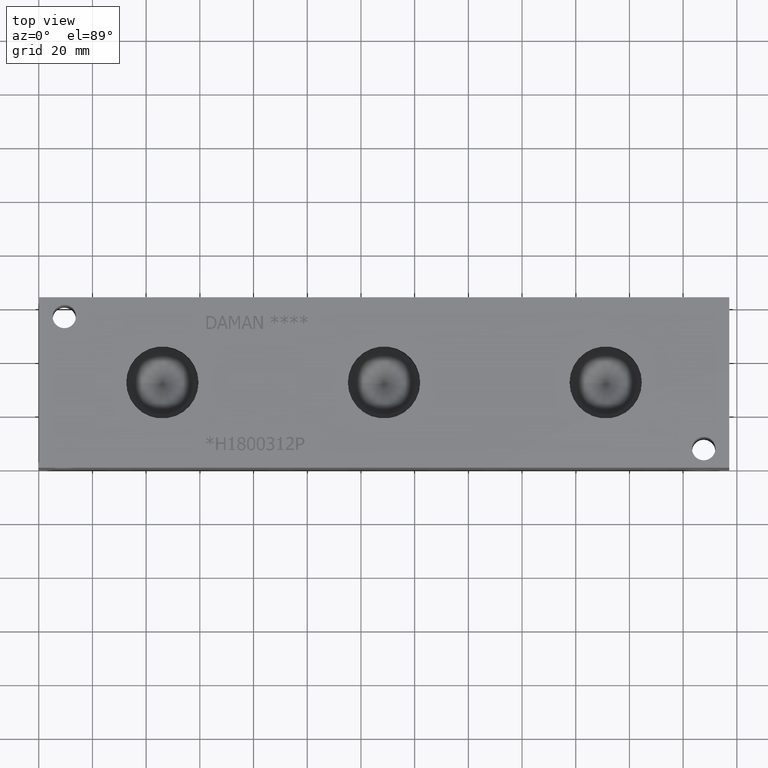
[diagram: clean part render]
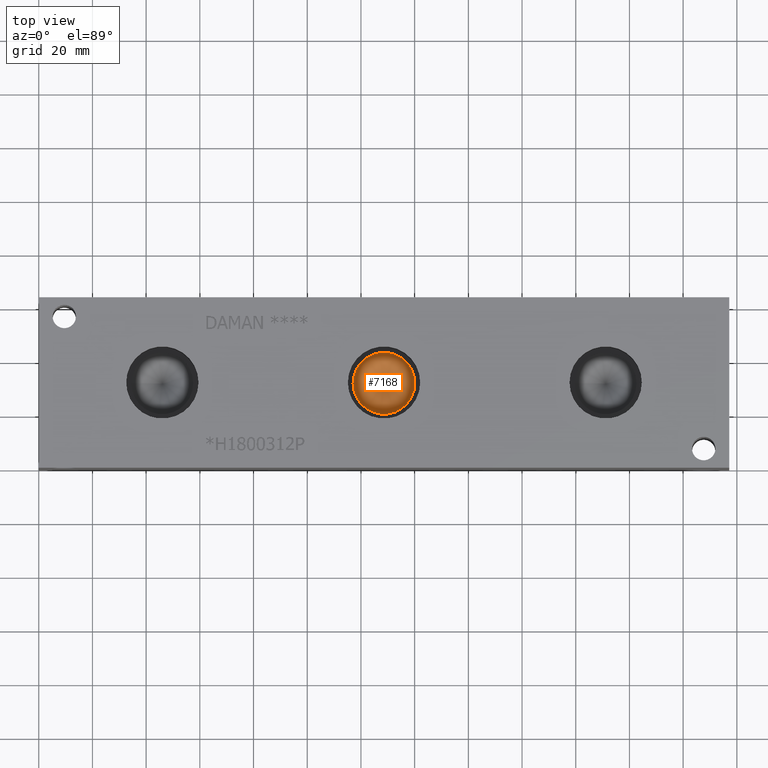
[diagram: same view with one face highlighted and labeled with its STEP entity id]
A machine part, top view. The second image highlights one B-rep face of the part: STEP entity #7168.
In plain terms, the highlighted conical surface has half-angle 60 deg.
Its self-contained STEP definition (entity closure, byte-faithful):
#49=CONICAL_SURFACE('',#7499,5.7531,1.0471975511966);
#93=CIRCLE('',#7500,11.5062);
#94=CIRCLE('',#7501,11.5062);
#746=FACE_OUTER_BOUND('',#1142,.T.);
#1142=EDGE_LOOP('',(#6303,#6304,#6305,#6306));
#1887=LINE('',#12056,#2613);
#2613=VECTOR('',#8845,5.7531);
#3444=VERTEX_POINT('',#12052);
#3445=VERTEX_POINT('',#12053);
#3446=VERTEX_POINT('',#12055);
#4414=EDGE_CURVE('',#3444,#3445,#93,.T.);
#4415=EDGE_CURVE('',#3445,#3446,#1887,.T.);
#4416=EDGE_CURVE('',#3445,#3444,#94,.T.);
#6303=ORIENTED_EDGE('',*,*,#4414,.T.);
#6304=ORIENTED_EDGE('',*,*,#4415,.T.);
#6305=ORIENTED_EDGE('',*,*,#4415,.F.);
#6306=ORIENTED_EDGE('',*,*,#4416,.T.);
#7168=ADVANCED_FACE('',(#746),#49,.F.);
#7499=AXIS2_PLACEMENT_3D('',#12051,#8841,#8842);
#7500=AXIS2_PLACEMENT_3D('',#12054,#8843,#8844);
#7501=AXIS2_PLACEMENT_3D('',#12057,#8846,#8847);
#8841=DIRECTION('center_axis',(0.,0.,1.));
#8842=DIRECTION('ref_axis',(1.,0.,0.));
#8843=DIRECTION('center_axis',(0.,0.,1.));
#8844=DIRECTION('ref_axis',(1.,0.,0.));
#8845=DIRECTION('',(0.866025403784439,1.06057523872491E-16,-0.5));
#8846=DIRECTION('center_axis',(0.,0.,1.));
#8847=DIRECTION('ref_axis',(1.,0.,0.));
#12051=CARTESIAN_POINT('Origin',(128.5748,31.75,43.6645361663252));
#12052=CARTESIAN_POINT('',(140.081,31.75,46.98609));
#12053=CARTESIAN_POINT('',(117.0686,31.75,46.98609));
#12054=CARTESIAN_POINT('Origin',(128.5748,31.75,46.98609));
#12055=CARTESIAN_POINT('',(128.5748,31.75,40.3429823326503));
#12056=CARTESIAN_POINT('',(122.8217,31.75,43.6645361663252));
#12057=CARTESIAN_POINT('Origin',(128.5748,31.75,46.98609));